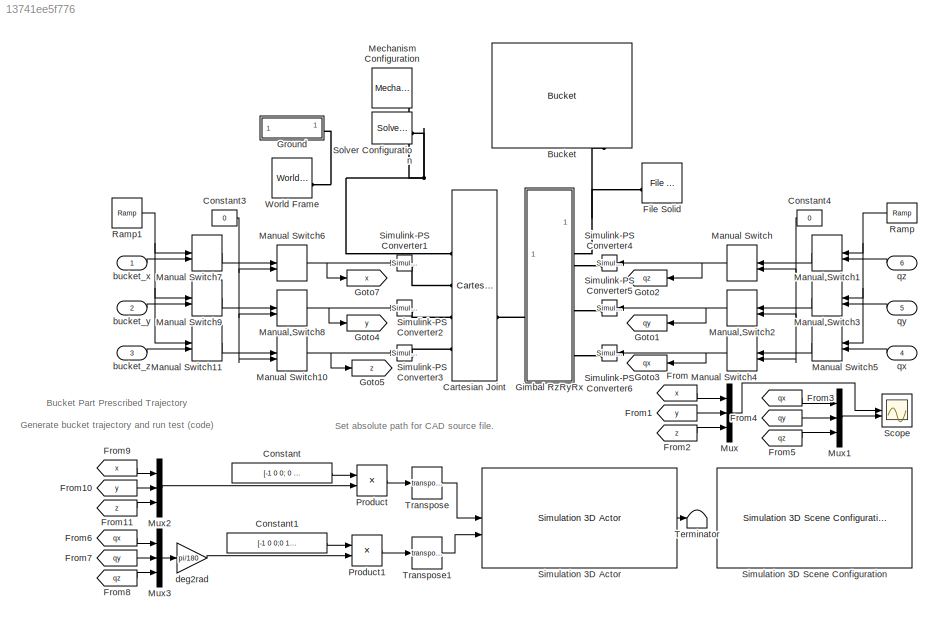
MODEL slx_13741ee5f776
KIND model
CONFIG AbsTol = 1e-3
CONFIG EnableMultiTasking = on
CONFIG SolverName = VariableStepAuto
CONFIG StopTime = 31
BLOCK [Reference] Bucket  REF=Excavator_Parts_Lib/Bucket
  NameLocation = right
  SourceBlock = Excavator_Parts_Lib/Bucket
  Tag = FF47B028-216B-7042-A7FD-934F60E6CEA6
BLOCK [Reference] Cartesian Joint  REF=sm_lib/Joints/Cartesian
Joint
  SourceBlock = sm_lib/Joints/Cartesian\nJoint
  SourceType = Cartesian\nJoint
BLOCK [Constant] Constant
  Value = [-1 0 0; 0 1 0; 0 0 1]
BLOCK [Constant] Constant1
  Value = [-1 0 0;0 1 0;0 0 -1]
BLOCK [Constant] Constant3
  Value = 0
BLOCK [Constant] Constant4
  Value = 0
BLOCK [Reference] File Solid  REF=sm_lib/Body Elements/File Solid
  Commented = on
  NameLocation = top
  SourceBlock = sm_lib/Body Elements/File Solid
  SourceType = File Solid
BLOCK [From] From
  GotoTag = x
BLOCK [From] From1
  GotoTag = y
BLOCK [From] From10
  GotoTag = y
BLOCK [From] From11
  GotoTag = z
BLOCK [From] From2
  GotoTag = z
BLOCK [From] From3
  GotoTag = qx
BLOCK [From] From4
  GotoTag = qy
BLOCK [From] From5
  GotoTag = qz
BLOCK [From] From6
  GotoTag = qx
BLOCK [From] From7
  GotoTag = qy
BLOCK [From] From8
  GotoTag = qz
BLOCK [From] From9
  GotoTag = x
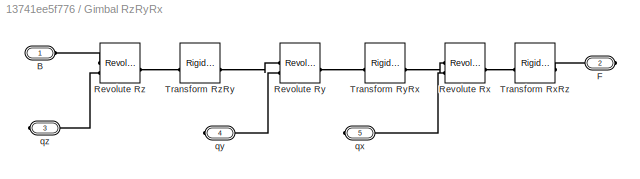
BLOCK [SubSystem] Gimbal RzRyRx
BLOCK [PMIOPort] Gimbal RzRyRx/B
  Side = Left
BLOCK [PMIOPort] Gimbal RzRyRx/F
  Port = 2
  Side = Right
BLOCK [Reference] Gimbal RzRyRx/Revolute Rx  REF=sm_lib/Joints/Revolute Joint
  SourceBlock = sm_lib/Joints/Revolute Joint
  SourceType = Revolute Joint
BLOCK [Reference] Gimbal RzRyRx/Revolute Ry  REF=sm_lib/Joints/Revolute Joint
  SourceBlock = sm_lib/Joints/Revolute Joint
  SourceType = Revolute Joint
BLOCK [Reference] Gimbal RzRyRx/Revolute Rz  REF=sm_lib/Joints/Revolute Joint
  SourceBlock = sm_lib/Joints/Revolute Joint
  SourceType = Revolute Joint
BLOCK [Reference] Gimbal RzRyRx/Transform RxRz  REF=sm_lib/Frames and
Transforms/Rigid
Transform
  SourceBlock = sm_lib/Frames and\nTransforms/Rigid\nTransform
  SourceType = Rigid\nTransform
BLOCK [Reference] Gimbal RzRyRx/Transform RyRx  REF=sm_lib/Frames and
Transforms/Rigid
Transform
  SourceBlock = sm_lib/Frames and\nTransforms/Rigid\nTransform
  SourceType = Rigid\nTransform
BLOCK [Reference] Gimbal RzRyRx/Transform RzRy  REF=sm_lib/Frames and
Transforms/Rigid
Transform
  SourceBlock = sm_lib/Frames and\nTransforms/Rigid\nTransform
  SourceType = Rigid\nTransform
BLOCK [PMIOPort] Gimbal RzRyRx/qx
  Port = 5
  Side = Right
BLOCK [PMIOPort] Gimbal RzRyRx/qy
  Port = 4
  Side = Right
BLOCK [PMIOPort] Gimbal RzRyRx/qz
  Port = 3
  Side = Right
BLOCK [Goto] Goto1
  GotoTag = qy
BLOCK [Goto] Goto2
  GotoTag = qz
BLOCK [Goto] Goto3
  GotoTag = qx
BLOCK [Goto] Goto4
  GotoTag = y
BLOCK [Goto] Goto5
  GotoTag = z
BLOCK [Goto] Goto7
  GotoTag = x
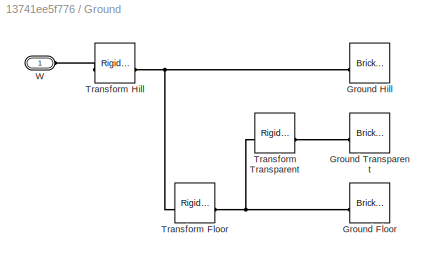
BLOCK [SubSystem] Ground
BLOCK [Reference] Ground/Ground Floor  REF=sm_lib/Body Elements/Brick Solid
  SourceBlock = sm_lib/Body Elements/Brick Solid
  SourceType = Brick Solid
BLOCK [Reference] Ground/Ground Hill  REF=sm_lib/Body Elements/Brick Solid
  SourceBlock = sm_lib/Body Elements/Brick Solid
  SourceType = Brick Solid
BLOCK [Reference] Ground/Ground Transparent  REF=sm_lib/Body Elements/Brick Solid
  SourceBlock = sm_lib/Body Elements/Brick Solid
  SourceType = Brick Solid
BLOCK [Reference] Ground/Transform Floor  REF=sm_lib/Frames and
Transforms/Rigid
Transform
  SourceBlock = sm_lib/Frames and\nTransforms/Rigid\nTransform
  SourceType = Rigid\nTransform
BLOCK [Reference] Ground/Transform Hill  REF=sm_lib/Frames and
Transforms/Rigid
Transform
  SourceBlock = sm_lib/Frames and\nTransforms/Rigid\nTransform
  SourceType = Rigid\nTransform
BLOCK [Reference] Ground/Transform Transparent  REF=sm_lib/Frames and
Transforms/Rigid
Transform
  SourceBlock = sm_lib/Frames and\nTransforms/Rigid\nTransform
  SourceType = Rigid\nTransform
BLOCK [PMIOPort] Ground/W
  Side = Left
BLOCK [ManualSwitch] Manual Switch
BLOCK [ManualSwitch] Manual Switch1
  CurrentSetting = 0
BLOCK [ManualSwitch] Manual Switch10
BLOCK [ManualSwitch] Manual Switch11
  CurrentSetting = 0
BLOCK [ManualSwitch] Manual Switch2
BLOCK [ManualSwitch] Manual Switch3
  CurrentSetting = 0
BLOCK [ManualSwitch] Manual Switch4
BLOCK [ManualSwitch] Manual Switch5
  CurrentSetting = 0
BLOCK [ManualSwitch] Manual Switch6
BLOCK [ManualSwitch] Manual Switch7
  CurrentSetting = 0
BLOCK [ManualSwitch] Manual Switch8
BLOCK [ManualSwitch] Manual Switch9
  CurrentSetting = 0
BLOCK [Reference] Mechanism Configuration  REF=sm_lib/Utilities/Mechanism
Configuration
  SourceBlock = sm_lib/Utilities/Mechanism\nConfiguration
  SourceType = Mechanism\nConfiguration
BLOCK [Mux] Mux
  DisplayOption = bar
  Inputs = 3
BLOCK [Mux] Mux1
  DisplayOption = bar
  Inputs = 3
BLOCK [Mux] Mux2
  DisplayOption = bar
  Inputs = 3
BLOCK [Mux] Mux3
  DisplayOption = bar
  Inputs = 3
BLOCK [Product] Product
  Multiplication = Matrix(*)
BLOCK [Product] Product1
  Multiplication = Matrix(*)
BLOCK [Reference] Ramp  REF=simulink/Sources/Ramp
  SourceBlock = simulink/Sources/Ramp
  SourceType = Ramp
BLOCK [Reference] Ramp1  REF=simulink/Sources/Ramp
  SourceBlock = simulink/Sources/Ramp
  SourceType = Ramp
BLOCK [Scope] Scope
  ActiveDisplayYMaximum = 16.45458
  ActiveDisplayYMinimum = -4.69364
  Floating = off
  GraphicalSettings = {"GraphicalSettings":{"LegacySettings":true,"Style":{"AxesScalingProperties":{"ScaleAxesLimitsAtStop":false},"Style":{"AxesColor":"[0 0 0]","ChannelNames":["",""],"ColorOrder":"[1 0.909803921568627 0.392156862745098;0.149019607843137 0.549019607843137 0.866666666666667;0.96078431372549 0.466666666666667 0.16078431372549;0.286274509803922 0.858823529411765 0.250980392156863;0.752941176470588 0.3607...<+519ch>
  LayoutDimensionsString = [2 1]
  MultipleDisplayCache = [{"MaxYLimMag":16.45458,"MaxYLimReal":16.45458,"MinYLimMag":0,"MinYLimReal":-4.69364,"PlotAsMagnitudePhase":false,"ShowGrid":true,"ShowLegend":false,"Title":"%<SignalLabel>","YLabel":""},{"MaxYLimMag":169.60119,"MaxYLimReal":85.67923,"MinYLimMag":0,"MinYLimReal":-151.36932,"PlotAsMagnitudePhase":false,"ShowGrid":true,"ShowLegend":false,"Title":"%<SignalLabel>","YLabel":""}]
  NumInputPorts = 2
  WasSavedAsWebScope = on
  WindowPosition = [1058 358 560 420]
BLOCK [Reference] Simulation 3D Actor  REF=sim3dlib/Simulation 3D Actor
  LibrarySourceBlock = sl3dlib/Simulation 3D/Simulation 3D Actor
  SourceBlock = sim3dlib/Simulation 3D Actor
  SourceType = Simulation 3D Actor
BLOCK [Reference] Simulation 3D Scene Configuration  REF=sim3dlib/Simulation 3D Scene Configuration
  LibrarySourceBlock = sl3dlib/Simulation 3D/Simulation 3D Scene Configuration
  Priority = 0
  SourceBlock = sim3dlib/Simulation 3D Scene Configuration
  SourceType = Simulation 3D Scene Configuration
BLOCK [Reference] Simulink-PS Converter1  REF=nesl_utility/Simulink-PS
Converter
  SourceBlock = nesl_utility/Simulink-PS\nConverter
  SourceType = Simulink-PS\nConverter
BLOCK [Reference] Simulink-PS Converter2  REF=nesl_utility/Simulink-PS
Converter
  SourceBlock = nesl_utility/Simulink-PS\nConverter
  SourceType = Simulink-PS\nConverter
BLOCK [Reference] Simulink-PS Converter3  REF=nesl_utility/Simulink-PS
Converter
  SourceBlock = nesl_utility/Simulink-PS\nConverter
  SourceType = Simulink-PS\nConverter
BLOCK [Reference] Simulink-PS Converter4  REF=nesl_utility/Simulink-PS
Converter
  SourceBlock = nesl_utility/Simulink-PS\nConverter
  SourceType = Simulink-PS\nConverter
BLOCK [Reference] Simulink-PS Converter5  REF=nesl_utility/Simulink-PS
Converter
  SourceBlock = nesl_utility/Simulink-PS\nConverter
  SourceType = Simulink-PS\nConverter
BLOCK [Reference] Simulink-PS Converter6  REF=nesl_utility/Simulink-PS
Converter
  SourceBlock = nesl_utility/Simulink-PS\nConverter
  SourceType = Simulink-PS\nConverter
BLOCK [Reference] Solver Configuration  REF=nesl_utility/Solver
Configuration
  SourceBlock = nesl_utility/Solver\nConfiguration
  SourceType = Solver\nConfiguration
BLOCK [Terminator] Terminator
BLOCK [Math] Transpose
  Operator = transpose
BLOCK [Math] Transpose1
  Operator = transpose
BLOCK [Reference] World Frame  REF=sm_lib/Frames and
Transforms/World Frame
  SourceBlock = sm_lib/Frames and\nTransforms/World Frame
  SourceType = World Frame
BLOCK [Inport] bucket_x
BLOCK [Inport] bucket_y
  Port = 2
BLOCK [Inport] bucket_z
  Port = 3
BLOCK [Gain] deg2rad
  Gain = pi/180
BLOCK [Inport] qx
  Port = 4
BLOCK [Inport] qy
  Port = 5
BLOCK [Inport] qz
  Port = 6
ANNOTATION (root): Generate bucket trajectory and run test ( code )
ANNOTATION (root): Bucket Part Prescribed Trajectory
ANNOTATION (root): Set absolute path for CAD source file.
LINE Constant1:1 -> Product1:1
NET Constant3:1 -> Manual Switch10:2, Manual Switch6:2, Manual Switch8:2
NET Constant4:1 -> Manual Switch2:2, Manual Switch4:2, Manual Switch:2
LINE Constant:1 -> Product:1
LINE From10:1 -> Mux2:2
LINE From11:1 -> Mux2:3
LINE From1:1 -> Mux:2
LINE From2:1 -> Mux:3
LINE From3:1 -> Mux1:1
LINE From4:1 -> Mux1:2
LINE From5:1 -> Mux1:3
LINE From6:1 -> Mux3:1
LINE From7:1 -> Mux3:2
LINE From8:1 -> Mux3:3
LINE From9:1 -> Mux2:1
LINE From:1 -> Mux:1
NET Manual Switch10:1 -> Goto5:1, Simulink-PS Converter3:1
LINE Manual Switch11:1 -> Manual Switch10:1
LINE Manual Switch1:1 -> Manual Switch:1
NET Manual Switch2:1 -> Goto1:1, Simulink-PS Converter5:1
LINE Manual Switch3:1 -> Manual Switch2:1
NET Manual Switch4:1 -> Goto3:1, Simulink-PS Converter6:1
LINE Manual Switch5:1 -> Manual Switch4:1
NET Manual Switch6:1 -> Goto7:1, Simulink-PS Converter1:1
LINE Manual Switch7:1 -> Manual Switch6:1
NET Manual Switch8:1 -> Goto4:1, Simulink-PS Converter2:1
LINE Manual Switch9:1 -> Manual Switch8:1
NET Manual Switch:1 -> Goto2:1, Simulink-PS Converter4:1
LINE Mux1:1 -> Scope:2
LINE Mux2:1 -> Product:2
LINE Mux3:1 -> deg2rad:1
LINE Mux:1 -> Scope:1
LINE Product1:1 -> Transpose1:1
LINE Product:1 -> Transpose:1
NET Ramp1:1 -> Manual Switch11:1, Manual Switch7:1, Manual Switch9:1
NET Ramp:1 -> Manual Switch1:1, Manual Switch3:1, Manual Switch5:1
LINE Simulation 3D Actor:1 -> Terminator:1
LINE Transpose1:1 -> Simulation 3D Actor:2
LINE Transpose:1 -> Simulation 3D Actor:1
LINE bucket_x:1 -> Manual Switch7:2
LINE bucket_y:1 -> Manual Switch9:2
LINE bucket_z:1 -> Manual Switch11:2
LINE deg2rad:1 -> Product1:2
LINE qx:1 -> Manual Switch5:2
LINE qy:1 -> Manual Switch3:2
LINE qz:1 -> Manual Switch1:2
PNET net1: Bucket:RConn3 -- File Solid:RConn1 -- Gimbal RzRyRx:RConn1
PNET net2: Cartesian Joint:LConn1 -- Ground:LConn1 -- Mechanism Configuration:RConn1 -- Solver Configuration:RConn1 -- World Frame:RConn1
PLINE Cartesian Joint:LConn2 -- Simulink-PS Converter1:RConn1
PLINE Cartesian Joint:LConn3 -- Simulink-PS Converter2:RConn1
PLINE Cartesian Joint:LConn4 -- Simulink-PS Converter3:RConn1
PLINE Cartesian Joint:RConn1 -- Gimbal RzRyRx:LConn1
PLINE Gimbal RzRyRx/B:RConn1 -- Gimbal RzRyRx/Revolute Rz:LConn1
PLINE Gimbal RzRyRx/F:RConn1 -- Gimbal RzRyRx/Transform RxRz:RConn1
PLINE Gimbal RzRyRx/Revolute Rx:LConn1 -- Gimbal RzRyRx/Transform RyRx:RConn1
PLINE Gimbal RzRyRx/Revolute Rx:LConn2 -- Gimbal RzRyRx/qx:RConn1
PLINE Gimbal RzRyRx/Revolute Rx:RConn1 -- Gimbal RzRyRx/Transform RxRz:LConn1
PLINE Gimbal RzRyRx/Revolute Ry:LConn1 -- Gimbal RzRyRx/Transform RzRy:RConn1
PLINE Gimbal RzRyRx/Revolute Ry:LConn2 -- Gimbal RzRyRx/qy:RConn1
PLINE Gimbal RzRyRx/Revolute Ry:RConn1 -- Gimbal RzRyRx/Transform RyRx:LConn1
PLINE Gimbal RzRyRx/Revolute Rz:LConn2 -- Gimbal RzRyRx/qz:RConn1
PLINE Gimbal RzRyRx/Revolute Rz:RConn1 -- Gimbal RzRyRx/Transform RzRy:LConn1
PLINE Gimbal RzRyRx:RConn2 -- Simulink-PS Converter4:RConn1
PLINE Gimbal RzRyRx:RConn3 -- Simulink-PS Converter5:RConn1
PLINE Gimbal RzRyRx:RConn4 -- Simulink-PS Converter6:RConn1
PNET net3: Ground/Ground Floor:RConn1 -- Ground/Transform Floor:RConn1 -- Ground/Transform Transparent:LConn1
PNET net4: Ground/Ground Hill:RConn1 -- Ground/Transform Floor:LConn1 -- Ground/Transform Hill:RConn1
PLINE Ground/Ground Transparent:RConn1 -- Ground/Transform Transparent:RConn1
PLINE Ground/Transform Hill:LConn1 -- Ground/W:RConn1
note: NET lines group one-source signal fan-out (src -> all destinations, sorted); 1:1 wires keep LINE; PNET lines group multi-terminal physical nets as a canonical sorted terminal list (undirected conserving connections); 2-terminal nets keep the pairwise PLINE form
